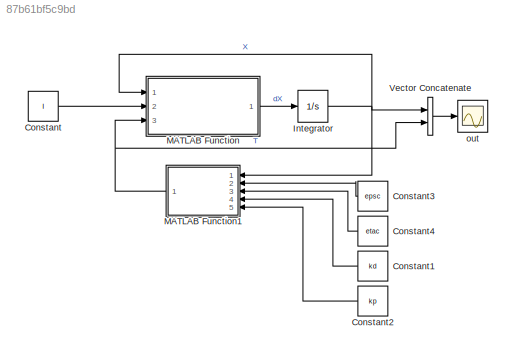
MODEL slx_87b61bf5c9bd
KIND model
CONFIG AbsTol = auto
CONFIG EnableMultiTasking = off
CONFIG FixedStep = auto
CONFIG MaxStep = auto
CONFIG MinStep = auto
CONFIG RelTol = 1e-3
CONFIG SampleTimeConstraint = Unconstrained
CONFIG SolverName = VariableStepAuto
CONFIG StartTime = 0.0
CONFIG StopTime = 10.0
BLOCK [Constant] Constant
  Value = I
BLOCK [Constant] Constant1
  Value = kd
BLOCK [Constant] Constant2
  Value = kp
BLOCK [Constant] Constant3
  Value = epsc
BLOCK [Constant] Constant4
  Value = etac
BLOCK [Integrator] Integrator
  InitialCondition = X0
  Ports = [1, 1]
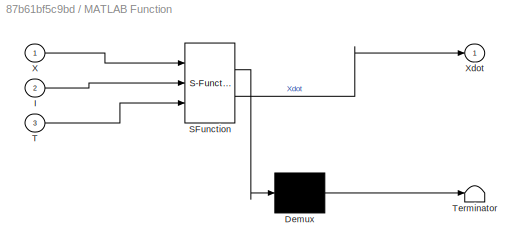
BLOCK [SubSystem] MATLAB Function
  ErrorFcn = Stateflow.Translate.translate
  PermitHierarchicalResolution = ExplicitOnly
  Ports = [3, 1]
  RequestExecContextInheritance = off
  SFBlockType = MATLAB Function
  TreatAsAtomicUnit = on
BLOCK [Demux] MATLAB Function/ Demux 
  Outputs = 1
  Ports = [1, 1]
BLOCK [S-Function] MATLAB Function/ SFunction 
  EnableBusSupport = on
  FunctionName = sf_sfun
  PortCounts = [3 2]
  Ports = [3, 2]
  SFcnIsStateOwnerBlock = off
  SFunctionDeploymentMode = off
  Tag = Stateflow S-Function 2
BLOCK [Terminator] MATLAB Function/ Terminator 
BLOCK [Inport] MATLAB Function/I
  Port = 2
BLOCK [Inport] MATLAB Function/T
  Port = 3
BLOCK [Inport] MATLAB Function/X
BLOCK [Outport] MATLAB Function/Xdot
  VectorParamsAs1DForOutWhenUnconnected = off
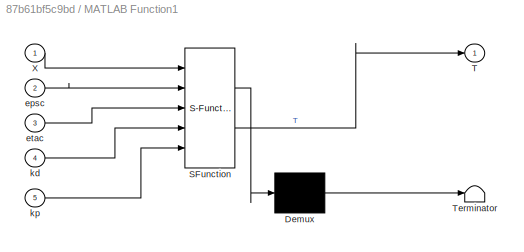
BLOCK [SubSystem] MATLAB Function1
  ErrorFcn = Stateflow.Translate.translate
  PermitHierarchicalResolution = ExplicitOnly
  Ports = [5, 1]
  RequestExecContextInheritance = off
  SFBlockType = MATLAB Function
  TreatAsAtomicUnit = on
BLOCK [Demux] MATLAB Function1/ Demux 
  Outputs = 1
  Ports = [1, 1]
BLOCK [S-Function] MATLAB Function1/ SFunction 
  EnableBusSupport = on
  FunctionName = sf_sfun
  PortCounts = [5 2]
  Ports = [5, 2]
  SFcnIsStateOwnerBlock = off
  SFunctionDeploymentMode = off
  Tag = Stateflow S-Function 1
BLOCK [Terminator] MATLAB Function1/ Terminator 
BLOCK [Outport] MATLAB Function1/T
BLOCK [Inport] MATLAB Function1/X
BLOCK [Inport] MATLAB Function1/epsc
  Port = 2
BLOCK [Inport] MATLAB Function1/etac
  Port = 3
BLOCK [Inport] MATLAB Function1/kd
  Port = 4
BLOCK [Inport] MATLAB Function1/kp
  Port = 5
BLOCK [Concatenate] Vector Concatenate
  Ports = [2, 1]
BLOCK [Scope] out
  Floating = off
  NumInputPorts = 1
  Ports = [1]
  ScopeSpecificationString = Simulink.scopes.TimeScopeBlockCfg('CurrentConfiguration', extmgr.ConfigurationSet(extmgr.Configuration('Core','General UI',true),extmgr.Configuration('Core','Source UI',true),extmgr.Configuration('Sources','WiredSimulink',true,'DataLogging',true),extmgr.Configuration('Visuals','Time Domain',true,'SerializedDisplays',{struct('MinYLimReal','-91.46545','MaxYLimReal','215.48063','YLabelReal','','MinYL...<+1426ch>
LINE Constant1:1 -> MATLAB Function1:4
LINE Constant2:1 -> MATLAB Function1:5
LINE Constant3:1 -> MATLAB Function1:2
LINE Constant4:1 -> MATLAB Function1:3
LINE Constant:1 -> MATLAB Function:2
NET Integrator:1 -> MATLAB Function1:1, MATLAB Function:1, Vector Concatenate:1
NET MATLAB Function1:1 -> MATLAB Function:3, Vector Concatenate:2
LINE MATLAB Function:1 -> Integrator:1
LINE Vector Concatenate:1 -> out:1
note: NET lines group one-source signal fan-out (src -> all destinations, sorted); 1:1 wires keep LINE
CHART MATLAB Function1 states=1 transitions=1
  STATE_LABEL 'eML_blk_kernel()'
  STATE_LABEL 'SCRIPT:\nfunction T = Feedback(X,epsc,etac,kd,kp)\n\n% pass through for feedback function\n\nT = zeros(3,1);\nT = FEEDBACK_ODE(X,epsc,etac,kd,kp);\nend\n'
CHART MATLAB Function states=1 transitions=1
  STATE_LABEL 'eML_blk_kernel()'
  STATE_LABEL 'SCRIPT:\nfunction Xdot = EOM(X,I,T)\n% pass through function calls shared ODE (because this is the world we live in)\nXdot = zeros(10,1);\nXdot = EOM_ODE(0,X,I,T);\nend'
CHART  states=0 transitions=0
CHART  states=0 transitions=0
